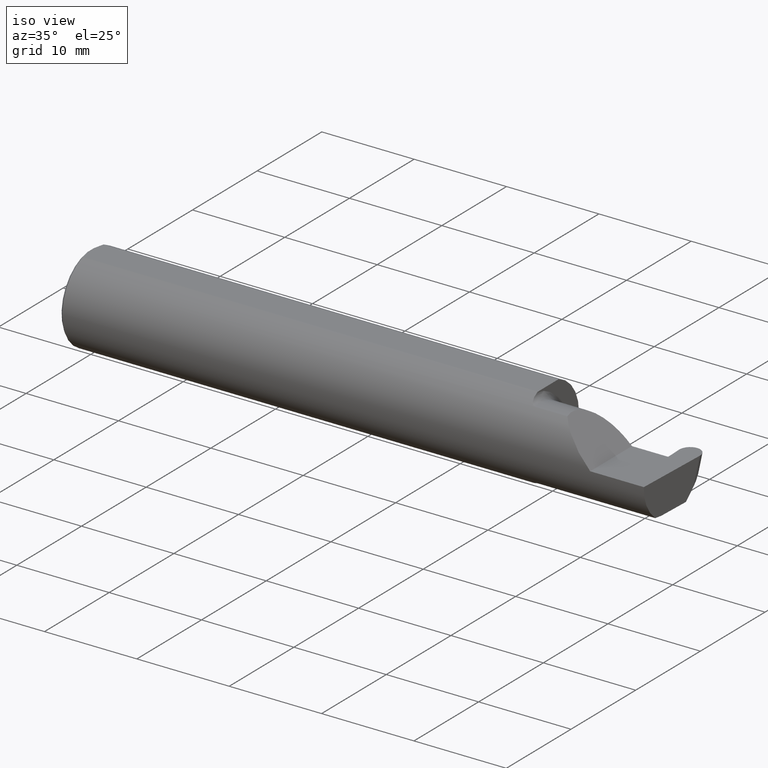
[diagram: clean part render]
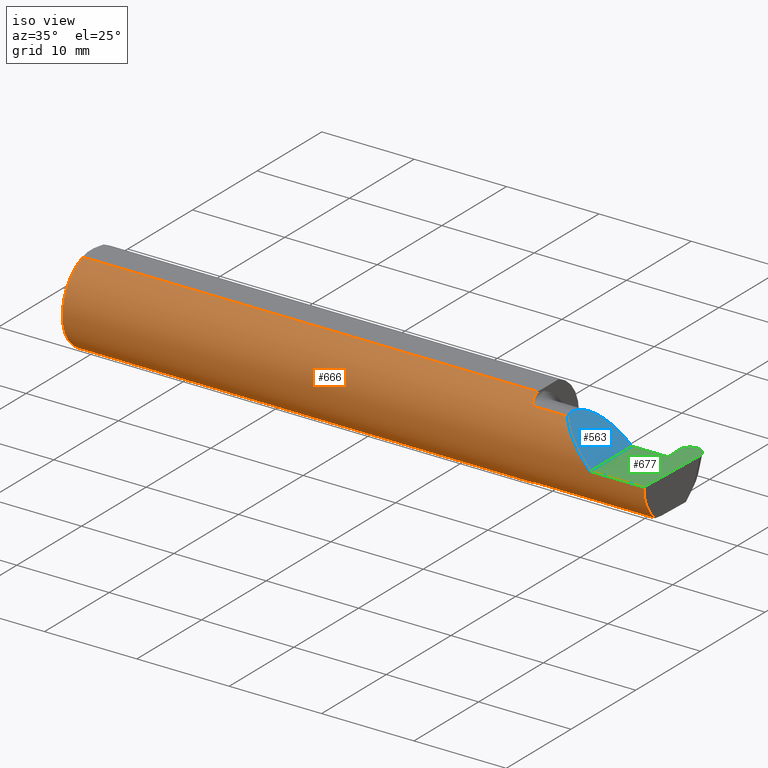
[diagram: same view with three faces highlighted in distinct colors, each labeled with its STEP entity id]
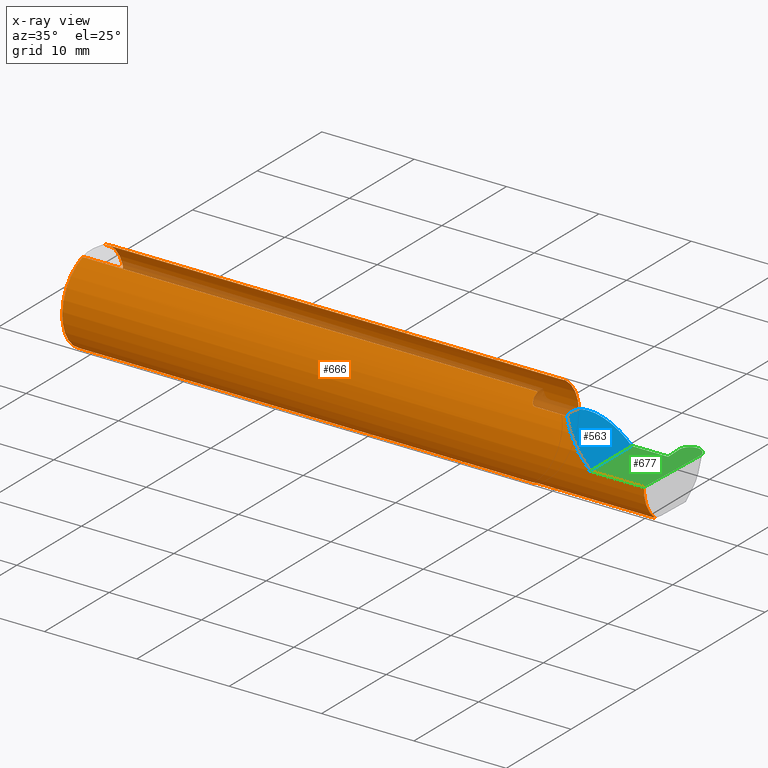
[diagram: x-ray of the same camera — body ghosted, the three highlighted faces saturated]
A machine part, iso view with three faces highlighted in distinct colors.
The next image is the same camera in x-ray (body ghosted, the three faces saturated) — at least one of them is partly hidden behind the body in this view.
Their STEP definitions:

[orange] entity #666 — the highlighted cylindrical surface (partial cylindrical patch) has radius 4.7587 mm, axis along (-1, -0, -0).
#3 = DIRECTION ( 'NONE',  ( -1.000000000000000000, -0.000000000000000000, -0.000000000000000000 ) ) ;
#7 = CARTESIAN_POINT ( 'NONE',  ( 0.000000000000000000, 0.000000000000000000, 0.000000000000000000 ) ) ;
#9 = CARTESIAN_POINT ( 'NONE',  ( 2.193402845000000045, -0.1172600179964006090, -0.1461167706989303927 ) ) ;
#11 = AXIS2_PLACEMENT_3D ( 'NONE', #24, #469, #87 ) ;
#19 = CARTESIAN_POINT ( 'NONE',  ( 0.009999999999999346217, 0.000000000000000000, 0.000000000000000000 ) ) ;
#20 = EDGE_CURVE ( 'NONE', #453, #21, #457, .T. ) ;
#21 = VERTEX_POINT ( 'NONE', #423 ) ;
#24 = CARTESIAN_POINT ( 'NONE',  ( 0.009999999999999346217, 0.000000000000000000, 0.000000000000000000 ) ) ;
#27 = ORIENTED_EDGE ( 'NONE', *, *, #189, .T. ) ;
#43 = CARTESIAN_POINT ( 'NONE',  ( 1.969511795768554174, -0.1163687266324233971, -0.1468371510166789906 ) ) ;
#44 = CARTESIAN_POINT ( 'NONE',  ( 1.974999999999999867, -0.1172600179964006228, 0.1461167706989303650 ) ) ;
#46 = CARTESIAN_POINT ( 'NONE',  ( 1.949999999999999956, -0.06851976604679065053, -0.1743704796142198643 ) ) ;
#47 = CARTESIAN_POINT ( 'NONE',  ( 2.150065971957465738, -0.1623470442677541759, 0.1099340280425336741 ) ) ;
#54 = DIRECTION ( 'NONE',  ( 0.000000000000000000, 1.000000000000000000, 0.000000000000000000 ) ) ;
#60 = VERTEX_POINT ( 'NONE', #550 ) ;
#76 = VERTEX_POINT ( 'NONE', #269 ) ;
#84 = LINE ( 'NONE', #596, #330 ) ;
#86 = CIRCLE ( 'NONE', #668, 0.1873499999999999888 ) ;
#87 = DIRECTION ( 'NONE',  ( 0.000000000000000000, 0.000000000000000000, -1.000000000000000000 ) ) ;
#93 = CARTESIAN_POINT ( 'NONE',  ( 1.963203859946833552, -0.1120371980050636623, -0.1501764597936560142 ) ) ;
#96 = CARTESIAN_POINT ( 'NONE',  ( 0.000000000000000000, 0.06325108694718235836, 0.1763499999999999235 ) ) ;
#97 = CARTESIAN_POINT ( 'NONE',  ( 1.950358271039143832, -0.07873626113568077400, -0.1700887912276895508 ) ) ;
#107 = CARTESIAN_POINT ( 'NONE',  ( 2.260000000000000231, -0.1873499999999999888, 2.939152317953647352E-17 ) ) ;
#118 = ORIENTED_EDGE ( 'NONE', *, *, #306, .F. ) ;
#119 = CARTESIAN_POINT ( 'NONE',  ( 1.949999999999999956, -0.06851976604679065053, 0.1743704796142198643 ) ) ;
#125 = CARTESIAN_POINT ( 'NONE',  ( 1.965004157323697376, -0.1137044537483315743, 0.1489098419202428414 ) ) ;
#131 = VECTOR ( 'NONE', #531, 39.37007874015748143 ) ;
#139 = EDGE_CURVE ( 'NONE', #177, #461, #84, .T. ) ;
#140 = CARTESIAN_POINT ( 'NONE',  ( 0.000000000000000000, -0.06325108694718235836, 0.1763499999999999235 ) ) ;
#151 = CARTESIAN_POINT ( 'NONE',  ( 1.952960551809340917, -0.09317341542745735672, -0.1626248379125196930 ) ) ;
#160 =( BOUNDED_CURVE ( )  B_SPLINE_CURVE ( 3, ( #589, #471, #698, #641 ),
 .UNSPECIFIED., .F., .T. ) 
 B_SPLINE_CURVE_WITH_KNOTS ( ( 4, 4 ),
 ( 5.852427379562185727, 6.746954780470634461 ),
 .UNSPECIFIED. ) 
 CURVE ( )  GEOMETRIC_REPRESENTATION_ITEM ( )  RATIONAL_B_SPLINE_CURVE ( ( 1.000000000000000000, 0.9344226172588800949, 0.9344226172588800949, 1.000000000000000000 ) ) 
 REPRESENTATION_ITEM ( '' )  );
#161 = CARTESIAN_POINT ( 'NONE',  ( 1.974999999999999867, -0.1172600179964006090, -0.1461167706989303927 ) ) ;
#166 = DIRECTION ( 'NONE',  ( 0.000000000000000000, 0.000000000000000000, 1.000000000000000000 ) ) ;
#171 = ORIENTED_EDGE ( 'NONE', *, *, #139, .F. ) ;
#177 = VERTEX_POINT ( 'NONE', #44 ) ;
#184 = EDGE_LOOP ( 'NONE', ( #518, #27, #385, #602, #171, #628, #325, #292, #305, #588, #235, #118, #697 ) ) ;
#188 = VECTOR ( 'NONE', #3, 39.37007874015748143 ) ;
#189 = EDGE_CURVE ( 'NONE', #376, #299, #160, .T. ) ;
#195 = CARTESIAN_POINT ( 'NONE',  ( 1.951829077486399555, -0.08839624499054642148, 0.1652742498708037466 ) ) ;
#200 = DIRECTION ( 'NONE',  ( 0.000000000000000000, 0.000000000000000000, -1.000000000000000000 ) ) ;
#219 = DIRECTION ( 'NONE',  ( -1.000000000000000000, -3.697236809793670161E-17, -0.000000000000000000 ) ) ;
#231 = CYLINDRICAL_SURFACE ( 'NONE', #528, 0.1873499999999999888 ) ;
#235 = ORIENTED_EDGE ( 'NONE', *, *, #561, .F. ) ;
#239 = CARTESIAN_POINT ( 'NONE',  ( 1.958475602106621638, -0.1064978748893404686, 0.1542035505680384444 ) ) ;
#243 = CIRCLE ( 'NONE', #11, 0.1873499999999999888 ) ;
#248 = VERTEX_POINT ( 'NONE', #259 ) ;
#250 = CARTESIAN_POINT ( 'NONE',  ( 0.009999999999999346217, 0.06325108694718235836, 0.1763499999999999235 ) ) ;
#259 = CARTESIAN_POINT ( 'NONE',  ( 0.009999999999999346217, -0.06325108694718235836, 0.1763499999999999235 ) ) ;
#263 = CARTESIAN_POINT ( 'NONE',  ( 2.113883229301068312, -0.1172600179964006784, 0.1461167706989302539 ) ) ;
#268 = DIRECTION ( 'NONE',  ( -1.000000000000000000, -0.000000000000000000, -0.000000000000000000 ) ) ;
#269 = CARTESIAN_POINT ( 'NONE',  ( 1.949999999999999956, -0.06325108694718283020, 0.1763499999999999235 ) ) ;
#273 = DIRECTION ( 'NONE',  ( 1.000000000000000000, 3.697236809793670161E-17, 0.000000000000000000 ) ) ;
#278 = CARTESIAN_POINT ( 'NONE',  ( 2.488576259503493926, -0.1873499999999999888, 0.000000000000000000 ) ) ;
#284 = CARTESIAN_POINT ( 'NONE',  ( 1.952945243422982369, -0.09312071749437422774, 0.1626553472577906556 ) ) ;
#292 = ORIENTED_EDGE ( 'NONE', *, *, #476, .F. ) ;
#295 = AXIS2_PLACEMENT_3D ( 'NONE', #19, #583, #200 ) ;
#299 = VERTEX_POINT ( 'NONE', #278 ) ;
#303 = DIRECTION ( 'NONE',  ( 1.000000000000000000, 3.697236809793670161E-17, 0.000000000000000000 ) ) ;
#305 = ORIENTED_EDGE ( 'NONE', *, *, #391, .T. ) ;
#306 = EDGE_CURVE ( 'NONE', #21, #682, #351, .T. ) ;
#314 = VERTEX_POINT ( 'NONE', #107 ) ;
#316 = CARTESIAN_POINT ( 'NONE',  ( 2.260000000000000231, -0.1873499999999999888, 2.939152317953647352E-17 ) ) ;
#325 = ORIENTED_EDGE ( 'NONE', *, *, #643, .F. ) ;
#326 = LINE ( 'NONE', #9, #567 ) ;
#330 = VECTOR ( 'NONE', #303, 39.37007874015748143 ) ;
#342 = CARTESIAN_POINT ( 'NONE',  ( 1.949999999999999956, 0.06325108694718235836, 0.1763499999999999235 ) ) ;
#351 = CIRCLE ( 'NONE', #579, 0.1873499999999999888 ) ;
#352 = VERTEX_POINT ( 'NONE', #607 ) ;
#353 = CARTESIAN_POINT ( 'NONE',  ( 1.972161949849308593, -0.1172600179964061462, 0.1461167706989260351 ) ) ;
#364 = CARTESIAN_POINT ( 'NONE',  ( 1.965028532764137914, -0.1137241120808233780, -0.1488947809299405178 ) ) ;
#369 = EDGE_CURVE ( 'NONE', #376, #453, #326, .T. ) ;
#374 = DIRECTION ( 'NONE',  ( 0.000000000000000000, 1.000000000000000000, 0.000000000000000000 ) ) ;
#376 = VERTEX_POINT ( 'NONE', #441 ) ;
#379 = EDGE_CURVE ( 'NONE', #314, #461, #635, .T. ) ;
#385 = ORIENTED_EDGE ( 'NONE', *, *, #612, .T. ) ;
#390 = CARTESIAN_POINT ( 'NONE',  ( 1.969481469043492750, -0.1163560528186165510, 0.1468472430636323378 ) ) ;
#391 = EDGE_CURVE ( 'NONE', #248, #352, #243, .T. ) ;
#412 = EDGE_CURVE ( 'NONE', #352, #490, #517, .T. ) ;
#413 = CARTESIAN_POINT ( 'NONE',  ( 1.963163223656403389, -0.1119926267047276353, 0.1502091925606063583 ) ) ;
#423 = CARTESIAN_POINT ( 'NONE',  ( 1.949999999999999956, -0.06851976604679065053, -0.1743704796142198643 ) ) ;
#425 = LINE ( 'NONE', #642, #188 ) ;
#441 = CARTESIAN_POINT ( 'NONE',  ( 2.488471823259917226, -0.1172600179964005951, -0.1461167706989303927 ) ) ;
#453 = VERTEX_POINT ( 'NONE', #516 ) ;
#457 = B_SPLINE_CURVE_WITH_KNOTS ( 'NONE', 3,
 ( #161, #485, #43, #364, #93, #700, #539, #151, #650, #97, #598, #46 ),
 .UNSPECIFIED., .F., .F.,
 ( 4, 2, 2, 2, 2, 4 ),
 ( 1.967976973726874814E-07, 0.0002120314145722335065, 0.0004238660314470942881, 0.0008475352651968041419, 0.001271204498946514050, 0.001694873732696223741 ),
 .UNSPECIFIED. ) ;
#461 = VERTEX_POINT ( 'NONE', #625 ) ;
#463 = CARTESIAN_POINT ( 'NONE',  ( 1.949999999999999512, -0.07367581953296697961, 0.1723443821957854061 ) ) ;
#469 = DIRECTION ( 'NONE',  ( 1.000000000000000000, 0.000000000000000000, 0.000000000000000000 ) ) ;
#471 = CARTESIAN_POINT ( 'NONE',  ( 2.487529306701961485, -0.1623470442677540093, -0.1099340280425339378 ) ) ;
#476 = EDGE_CURVE ( 'NONE', #248, #76, #637, .T. ) ;
#485 = CARTESIAN_POINT ( 'NONE',  ( 1.972174967710399685, -0.1172600179964005812, -0.1461167706989304482 ) ) ;
#490 = VERTEX_POINT ( 'NONE', #250 ) ;
#498 = EDGE_CURVE ( 'NONE', #60, #177, #513, .T. ) ;
#513 = B_SPLINE_CURVE_WITH_KNOTS ( 'NONE', 3,
 ( #119, #463, #696, #195, #284, #686, #239, #413, #125, #390, #353, #525 ),
 .UNSPECIFIED., .F., .F.,
 ( 4, 2, 2, 2, 2, 4 ),
 ( 4.423516731080748054E-05, 0.0004615475116586696745, 0.0008788598560065318888, 0.001296172200354394049, 0.001504828372528325400, 0.001713484544702256968 ),
 .UNSPECIFIED. ) ;
#516 = CARTESIAN_POINT ( 'NONE',  ( 1.974999999999999867, -0.1172600179964006090, -0.1461167706989303927 ) ) ;
#517 = CIRCLE ( 'NONE', #295, 0.1873499999999999888 ) ;
#518 = ORIENTED_EDGE ( 'NONE', *, *, #369, .F. ) ;
#525 = CARTESIAN_POINT ( 'NONE',  ( 1.974999999999999867, -0.1172600179964006228, 0.1461167706989303650 ) ) ;
#528 = AXIS2_PLACEMENT_3D ( 'NONE', #7, #620, #166 ) ;
#531 = DIRECTION ( 'NONE',  ( 1.000000000000000000, 0.000000000000000000, 0.000000000000000000 ) ) ;
#539 = CARTESIAN_POINT ( 'NONE',  ( 1.956304331342286762, -0.1022198306720690231, -0.1570962426853819704 ) ) ;
#544 = CARTESIAN_POINT ( 'NONE',  ( 2.202189699843949189, -0.1873500000000000998, 0.05781030015605102129 ) ) ;
#550 = CARTESIAN_POINT ( 'NONE',  ( 1.949999999999999956, -0.06851976604679065053, 0.1743704796142198643 ) ) ;
#554 = FACE_OUTER_BOUND ( 'NONE', #184, .T. ) ;
#561 = EDGE_CURVE ( 'NONE', #682, #490, #594, .T. ) ;
#567 = VECTOR ( 'NONE', #219, 39.37007874015748143 ) ;
#579 = AXIS2_PLACEMENT_3D ( 'NONE', #603, #273, #54 ) ;
#583 = DIRECTION ( 'NONE',  ( 1.000000000000000000, 0.000000000000000000, 0.000000000000000000 ) ) ;
#588 = ORIENTED_EDGE ( 'NONE', *, *, #412, .T. ) ;
#589 = CARTESIAN_POINT ( 'NONE',  ( 2.488471823259917226, -0.1172600179964005951, -0.1461167706989303927 ) ) ;
#594 = LINE ( 'NONE', #96, #630 ) ;
#596 = CARTESIAN_POINT ( 'NONE',  ( 2.193402845000000045, -0.1172600179964006090, 0.1461167706989303927 ) ) ;
#598 = CARTESIAN_POINT ( 'NONE',  ( 1.949999999999999512, -0.07368234487347190276, -0.1723418180300748115 ) ) ;
#602 = ORIENTED_EDGE ( 'NONE', *, *, #379, .T. ) ;
#603 = CARTESIAN_POINT ( 'NONE',  ( 1.949999999999999956, 0.000000000000000000, 0.000000000000000000 ) ) ;
#607 = CARTESIAN_POINT ( 'NONE',  ( 0.009999999999999346217, 0.000000000000000000, -0.1873499999999999888 ) ) ;
#612 = EDGE_CURVE ( 'NONE', #299, #314, #425, .T. ) ;
#620 = DIRECTION ( 'NONE',  ( -1.000000000000000000, -0.000000000000000000, -0.000000000000000000 ) ) ;
#625 = CARTESIAN_POINT ( 'NONE',  ( 2.113883229301068312, -0.1172600179964006784, 0.1461167706989302539 ) ) ;
#628 = ORIENTED_EDGE ( 'NONE', *, *, #498, .F. ) ;
#630 = VECTOR ( 'NONE', #268, 39.37007874015748143 ) ;
#635 =( BOUNDED_CURVE ( )  B_SPLINE_CURVE ( 3, ( #316, #544, #47, #263 ),
 .UNSPECIFIED., .F., .T. ) 
 B_SPLINE_CURVE_WITH_KNOTS ( ( 4, 4 ),
 ( 4.712388980384688786, 5.606916381293136631 ),
 .UNSPECIFIED. ) 
 CURVE ( )  GEOMETRIC_REPRESENTATION_ITEM ( )  RATIONAL_B_SPLINE_CURVE ( ( 1.000000000000000000, 0.9344226172588802060, 0.9344226172588802060, 1.000000000000000000 ) ) 
 REPRESENTATION_ITEM ( '' )  );
#637 = LINE ( 'NONE', #140, #131 ) ;
#641 = CARTESIAN_POINT ( 'NONE',  ( 2.488576259503493926, -0.1873499999999999888, 0.000000000000000000 ) ) ;
#642 = CARTESIAN_POINT ( 'NONE',  ( 3.749399456654646757E-32, -0.1873499999999999610, 3.061616997868383634E-16 ) ) ;
#643 = EDGE_CURVE ( 'NONE', #76, #60, #86, .T. ) ;
#646 = CARTESIAN_POINT ( 'NONE',  ( 1.949999999999999956, 0.000000000000000000, 0.000000000000000000 ) ) ;
#650 = CARTESIAN_POINT ( 'NONE',  ( 1.951843912362378086, -0.08846956905169084395, -0.1652353808078972919 ) ) ;
#653 = DIRECTION ( 'NONE',  ( 1.000000000000000000, 3.697236809793670161E-17, 0.000000000000000000 ) ) ;
#666 = ADVANCED_FACE ( 'NONE', ( #554 ), #231, .T. ) ;
#668 = AXIS2_PLACEMENT_3D ( 'NONE', #646, #653, #374 ) ;
#682 = VERTEX_POINT ( 'NONE', #342 ) ;
#686 = CARTESIAN_POINT ( 'NONE',  ( 1.956287624083520083, -0.1021858045380144991, 0.1571187174372875028 ) ) ;
#696 = CARTESIAN_POINT ( 'NONE',  ( 1.950353553376444671, -0.07868116735658675642, 0.1701139256562800572 ) ) ;
#697 = ORIENTED_EDGE ( 'NONE', *, *, #20, .F. ) ;
#698 = CARTESIAN_POINT ( 'NONE',  ( 2.487566561880238947, -0.1873499999999999610, -0.05781030015605118089 ) ) ;
#700 = CARTESIAN_POINT ( 'NONE',  ( 1.958439486659306450, -0.1064616213911156600, -0.1542305641651501857 ) ) ;

[blue] entity #563 — the highlighted planar face has unit normal (-0.7071, 0, -0.7071).
#14 = CARTESIAN_POINT ( 'NONE',  ( 2.090221225029926355, -0.01530148607434163137, 0.1697787749700727100 ) ) ;
#47 = CARTESIAN_POINT ( 'NONE',  ( 2.150065971957465738, -0.1623470442677541759, 0.1099340280425336741 ) ) ;
#67 = CARTESIAN_POINT ( 'NONE',  ( 2.155331797197862720, 0.06665000000000004254, 0.1046682028021360955 ) ) ;
#91 =( BOUNDED_CURVE ( )  B_SPLINE_CURVE ( 3, ( #120, #14, #67, #610 ),
 .UNSPECIFIED., .F., .T. ) 
 B_SPLINE_CURVE_WITH_KNOTS ( ( 4, 4 ),
 ( 6.055147272130142255, 7.853981633974482790 ),
 .UNSPECIFIED. ) 
 CURVE ( )  GEOMETRIC_REPRESENTATION_ITEM ( )  RATIONAL_B_SPLINE_CURVE ( ( 1.000000000000000000, 0.7480442670255268434, 0.7480442670255268434, 1.000000000000000000 ) ) 
 REPRESENTATION_ITEM ( '' )  );
#99 = EDGE_CURVE ( 'NONE', #314, #546, #164, .T. ) ;
#107 = CARTESIAN_POINT ( 'NONE',  ( 2.260000000000000231, -0.1873499999999999888, 2.939152317953647352E-17 ) ) ;
#120 = CARTESIAN_POINT ( 'NONE',  ( 2.113883229301068312, -0.1172600179964006784, 0.1461167706989302539 ) ) ;
#128 = ORIENTED_EDGE ( 'NONE', *, *, #674, .F. ) ;
#150 = PLANE ( 'NONE',  #398 ) ;
#164 = LINE ( 'NONE', #564, #555 ) ;
#203 = DIRECTION ( 'NONE',  ( -0.7071067811865509034, 0.000000000000000000, 0.7071067811865440200 ) ) ;
#263 = CARTESIAN_POINT ( 'NONE',  ( 2.113883229301068312, -0.1172600179964006784, 0.1461167706989302539 ) ) ;
#280 = DIRECTION ( 'NONE',  ( -0.000000000000000000, 1.000000000000000000, -0.000000000000000000 ) ) ;
#314 = VERTEX_POINT ( 'NONE', #107 ) ;
#316 = CARTESIAN_POINT ( 'NONE',  ( 2.260000000000000231, -0.1873499999999999888, 2.939152317953647352E-17 ) ) ;
#379 = EDGE_CURVE ( 'NONE', #314, #461, #635, .T. ) ;
#392 = ORIENTED_EDGE ( 'NONE', *, *, #99, .T. ) ;
#396 = ORIENTED_EDGE ( 'NONE', *, *, #379, .F. ) ;
#398 = AXIS2_PLACEMENT_3D ( 'NONE', #488, #545, #203 ) ;
#422 = CARTESIAN_POINT ( 'NONE',  ( 2.260000000000000231, 0.06665000000000002867, 6.735557395310446214E-17 ) ) ;
#455 = EDGE_LOOP ( 'NONE', ( #128, #396, #392 ) ) ;
#461 = VERTEX_POINT ( 'NONE', #625 ) ;
#488 = CARTESIAN_POINT ( 'NONE',  ( 2.260000000000000231, -0.2500000000000000555, 2.939152317953647352E-17 ) ) ;
#544 = CARTESIAN_POINT ( 'NONE',  ( 2.202189699843949189, -0.1873500000000000998, 0.05781030015605102129 ) ) ;
#545 = DIRECTION ( 'NONE',  ( -0.7071067811865441310, 0.000000000000000000, -0.7071067811865510144 ) ) ;
#546 = VERTEX_POINT ( 'NONE', #422 ) ;
#555 = VECTOR ( 'NONE', #280, 39.37007874015748143 ) ;
#563 = ADVANCED_FACE ( 'NONE', ( #699 ), #150, .F. ) ;
#564 = CARTESIAN_POINT ( 'NONE',  ( 2.260000000000000231, -0.2500000000000000555, 2.939152317953647352E-17 ) ) ;
#610 = CARTESIAN_POINT ( 'NONE',  ( 2.260000000000000231, 0.06665000000000002867, 6.735557395310446214E-17 ) ) ;
#625 = CARTESIAN_POINT ( 'NONE',  ( 2.113883229301068312, -0.1172600179964006784, 0.1461167706989302539 ) ) ;
#635 =( BOUNDED_CURVE ( )  B_SPLINE_CURVE ( 3, ( #316, #544, #47, #263 ),
 .UNSPECIFIED., .F., .T. ) 
 B_SPLINE_CURVE_WITH_KNOTS ( ( 4, 4 ),
 ( 4.712388980384688786, 5.606916381293136631 ),
 .UNSPECIFIED. ) 
 CURVE ( )  GEOMETRIC_REPRESENTATION_ITEM ( )  RATIONAL_B_SPLINE_CURVE ( ( 1.000000000000000000, 0.9344226172588802060, 0.9344226172588802060, 1.000000000000000000 ) ) 
 REPRESENTATION_ITEM ( '' )  );
#674 = EDGE_CURVE ( 'NONE', #461, #546, #91, .T. ) ;
#699 = FACE_OUTER_BOUND ( 'NONE', #455, .T. ) ;

[green] entity #677 — the highlighted planar face has unit normal (-0, 0, -1).
#1 = AXIS2_PLACEMENT_3D ( 'NONE', #496, #169, #558 ) ;
#3 = DIRECTION ( 'NONE',  ( -1.000000000000000000, -0.000000000000000000, -0.000000000000000000 ) ) ;
#10 = CARTESIAN_POINT ( 'NONE',  ( 2.411832552795360574, 0.1390138764844879860, 0.000000000000000000 ) ) ;
#22 = CARTESIAN_POINT ( 'NONE',  ( 2.456309424548497322, 0.1846500000000000363, 0.000000000000000000 ) ) ;
#65 = VECTOR ( 'NONE', #222, 39.37007874015748143 ) ;
#66 = CARTESIAN_POINT ( 'NONE',  ( 2.499906297085412898, 0.1370998259008695541, 0.000000000000000000 ) ) ;
#68 = EDGE_CURVE ( 'NONE', #573, #299, #207, .T. ) ;
#81 = ORIENTED_EDGE ( 'NONE', *, *, #240, .F. ) ;
#82 = CARTESIAN_POINT ( 'NONE',  ( 2.411899392914586659, 0.1370998259008695541, 0.000000000000000000 ) ) ;
#98 = CARTESIAN_POINT ( 'NONE',  ( 2.456309424548497322, 0.1846500000000000363, 0.000000000000000000 ) ) ;
#99 = EDGE_CURVE ( 'NONE', #314, #546, #164, .T. ) ;
#107 = CARTESIAN_POINT ( 'NONE',  ( 2.260000000000000231, -0.1873499999999999888, 2.939152317953647352E-17 ) ) ;
#109 = DIRECTION ( 'NONE',  ( -0.03489949670249319069, -0.9993908270190959842, 0.000000000000000000 ) ) ;
#127 = CARTESIAN_POINT ( 'NONE',  ( 2.411899392914586659, 0.1370998259008695541, 0.000000000000000000 ) ) ;
#145 = VECTOR ( 'NONE', #109, 39.37007874015748854 ) ;
#146 = CARTESIAN_POINT ( 'NONE',  ( 2.414359555045604289, 0.06664999999999991764, 0.000000000000000000 ) ) ;
#158 = LINE ( 'NONE', #553, #170 ) ;
#159 = CARTESIAN_POINT ( 'NONE',  ( -0.001039370078740541395, 0.1846500000000000363, 0.000000000000000000 ) ) ;
#164 = LINE ( 'NONE', #564, #555 ) ;
#165 = DIRECTION ( 'NONE',  ( 1.000000000000000000, -0.000000000000000000, -0.000000000000000000 ) ) ;
#169 = DIRECTION ( 'NONE',  ( -1.224646799147353947E-16, 0.000000000000000000, -1.000000000000000000 ) ) ;
#170 = VECTOR ( 'NONE', #165, 39.37007874015748143 ) ;
#174 = CARTESIAN_POINT ( 'NONE',  ( 2.429140065301251372, 0.1846500000000001473, 8.878101985489642774E-18 ) ) ;
#188 = VECTOR ( 'NONE', #3, 39.37007874015748143 ) ;
#192 = VERTEX_POINT ( 'NONE', #146 ) ;
#207 = LINE ( 'NONE', #209, #145 ) ;
#209 = CARTESIAN_POINT ( 'NONE',  ( 2.499973137204639428, 0.1390138764844880415, 0.000000000000000000 ) ) ;
#218 = VERTEX_POINT ( 'NONE', #98 ) ;
#222 = DIRECTION ( 'NONE',  ( -0.03489949670249400948, 0.9993908270190959842, -0.000000000000000000 ) ) ;
#224 = CARTESIAN_POINT ( 'NONE',  ( 2.455496265451502236, 0.1846500000000000363, 0.000000000000000000 ) ) ;
#240 = EDGE_CURVE ( 'NONE', #546, #296, #308, .T. ) ;
#278 = CARTESIAN_POINT ( 'NONE',  ( 2.488576259503493926, -0.1873499999999999888, 0.000000000000000000 ) ) ;
#280 = DIRECTION ( 'NONE',  ( -0.000000000000000000, 1.000000000000000000, -0.000000000000000000 ) ) ;
#285 =( BOUNDED_CURVE ( )  B_SPLINE_CURVE ( 3, ( #66, #289, #512, #22 ),
 .UNSPECIFIED., .F., .T. ) 
 B_SPLINE_CURVE_WITH_KNOTS ( ( 4, 4 ),
 ( 1.627103621474502049, 3.225696776093220475 ),
 .UNSPECIFIED. ) 
 CURVE ( )  GEOMETRIC_REPRESENTATION_ITEM ( )  RATIONAL_B_SPLINE_CURVE ( ( 1.000000000000000000, 0.7981407609938095948, 0.7981407609938095948, 1.000000000000000000 ) ) 
 REPRESENTATION_ITEM ( '' )  );
#289 = CARTESIAN_POINT ( 'NONE',  ( 2.500873303789769242, 0.1647912748130947180, 3.031548046095857169E-18 ) ) ;
#296 = VERTEX_POINT ( 'NONE', #386 ) ;
#299 = VERTEX_POINT ( 'NONE', #278 ) ;
#300 = EDGE_CURVE ( 'NONE', #296, #192, #158, .T. ) ;
#308 = LINE ( 'NONE', #418, #315 ) ;
#314 = VERTEX_POINT ( 'NONE', #107 ) ;
#315 = VECTOR ( 'NONE', #535, 39.37007874015748143 ) ;
#327 = LINE ( 'NONE', #10, #65 ) ;
#335 = CARTESIAN_POINT ( 'NONE',  ( 2.455496265451502236, 0.1846500000000000363, 0.000000000000000000 ) ) ;
#358 = EDGE_LOOP ( 'NONE', ( #634, #427, #448, #367, #81, #401, #383, #361, #410 ) ) ;
#361 = ORIENTED_EDGE ( 'NONE', *, *, #68, .F. ) ;
#367 = ORIENTED_EDGE ( 'NONE', *, *, #300, .F. ) ;
#372 = VERTEX_POINT ( 'NONE', #224 ) ;
#383 = ORIENTED_EDGE ( 'NONE', *, *, #612, .F. ) ;
#386 = CARTESIAN_POINT ( 'NONE',  ( 2.405238904245578624, 0.06664999999999991764, 0.000000000000000000 ) ) ;
#388 = FACE_OUTER_BOUND ( 'NONE', #358, .T. ) ;
#401 = ORIENTED_EDGE ( 'NONE', *, *, #99, .F. ) ;
#407 = EDGE_CURVE ( 'NONE', #372, #473, #658, .T. ) ;
#410 = ORIENTED_EDGE ( 'NONE', *, *, #507, .T. ) ;
#418 = CARTESIAN_POINT ( 'NONE',  ( 1.949999999999999956, 0.06665000000000002867, 6.735557395310446214E-17 ) ) ;
#422 = CARTESIAN_POINT ( 'NONE',  ( 2.260000000000000231, 0.06665000000000002867, 6.735557395310446214E-17 ) ) ;
#425 = LINE ( 'NONE', #642, #188 ) ;
#427 = ORIENTED_EDGE ( 'NONE', *, *, #407, .T. ) ;
#448 = ORIENTED_EDGE ( 'NONE', *, *, #695, .F. ) ;
#473 = VERTEX_POINT ( 'NONE', #127 ) ;
#481 = LINE ( 'NONE', #159, #684 ) ;
#496 = CARTESIAN_POINT ( 'NONE',  ( 2.500000000000000000, -0.2500000000000000555, 0.000000000000000000 ) ) ;
#507 = EDGE_CURVE ( 'NONE', #573, #218, #285, .T. ) ;
#509 = PLANE ( 'NONE',  #1 ) ;
#512 = CARTESIAN_POINT ( 'NONE',  ( 2.482665624698748186, 0.1846499999999999253, 5.261345637967953601E-18 ) ) ;
#535 = DIRECTION ( 'NONE',  ( 1.000000000000000000, 3.697236809793670161E-17, 0.000000000000000000 ) ) ;
#537 = DIRECTION ( 'NONE',  ( 1.000000000000000000, -0.000000000000000000, -0.000000000000000000 ) ) ;
#546 = VERTEX_POINT ( 'NONE', #422 ) ;
#553 = CARTESIAN_POINT ( 'NONE',  ( 2.414359555045604289, 0.06664999999999991764, 0.000000000000000000 ) ) ;
#555 = VECTOR ( 'NONE', #280, 39.37007874015748143 ) ;
#558 = DIRECTION ( 'NONE',  ( -1.000000000000000000, 0.000000000000000000, 1.224646799147353947E-16 ) ) ;
#564 = CARTESIAN_POINT ( 'NONE',  ( 2.260000000000000231, -0.2500000000000000555, 2.939152317953647352E-17 ) ) ;
#573 = VERTEX_POINT ( 'NONE', #599 ) ;
#587 = CARTESIAN_POINT ( 'NONE',  ( 2.410932386210230760, 0.1647912748130948291, 1.110789957736176039E-17 ) ) ;
#599 = CARTESIAN_POINT ( 'NONE',  ( 2.499906297085412898, 0.1370998259008695541, 0.000000000000000000 ) ) ;
#612 = EDGE_CURVE ( 'NONE', #299, #314, #425, .T. ) ;
#629 = EDGE_CURVE ( 'NONE', #372, #218, #481, .T. ) ;
#634 = ORIENTED_EDGE ( 'NONE', *, *, #629, .F. ) ;
#642 = CARTESIAN_POINT ( 'NONE',  ( 3.749399456654646757E-32, -0.1873499999999999610, 3.061616997868383634E-16 ) ) ;
#658 =( BOUNDED_CURVE ( )  B_SPLINE_CURVE ( 3, ( #335, #174, #587, #82 ),
 .UNSPECIFIED., .F., .T. ) 
 B_SPLINE_CURVE_WITH_KNOTS ( ( 4, 4 ),
 ( 3.057488531086357764, 4.656081685705083295 ),
 .UNSPECIFIED. ) 
 CURVE ( )  GEOMETRIC_REPRESENTATION_ITEM ( )  RATIONAL_B_SPLINE_CURVE ( ( 1.000000000000000000, 0.7981407609938078185, 0.7981407609938078185, 1.000000000000000000 ) ) 
 REPRESENTATION_ITEM ( '' )  );
#677 = ADVANCED_FACE ( 'NONE', ( #388 ), #509, .F. ) ;
#684 = VECTOR ( 'NONE', #537, 39.37007874015748143 ) ;
#695 = EDGE_CURVE ( 'NONE', #192, #473, #327, .T. ) ;